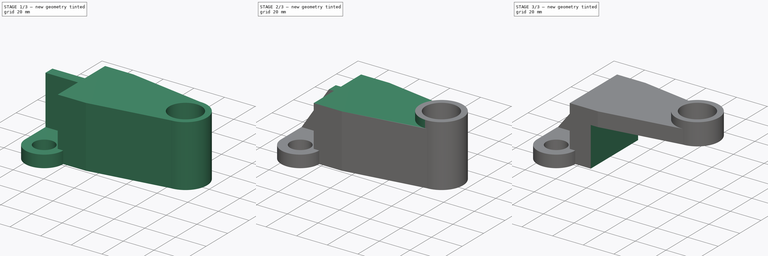
[diagram: build sequence overview — one tinted view per stage of 3, left to right]
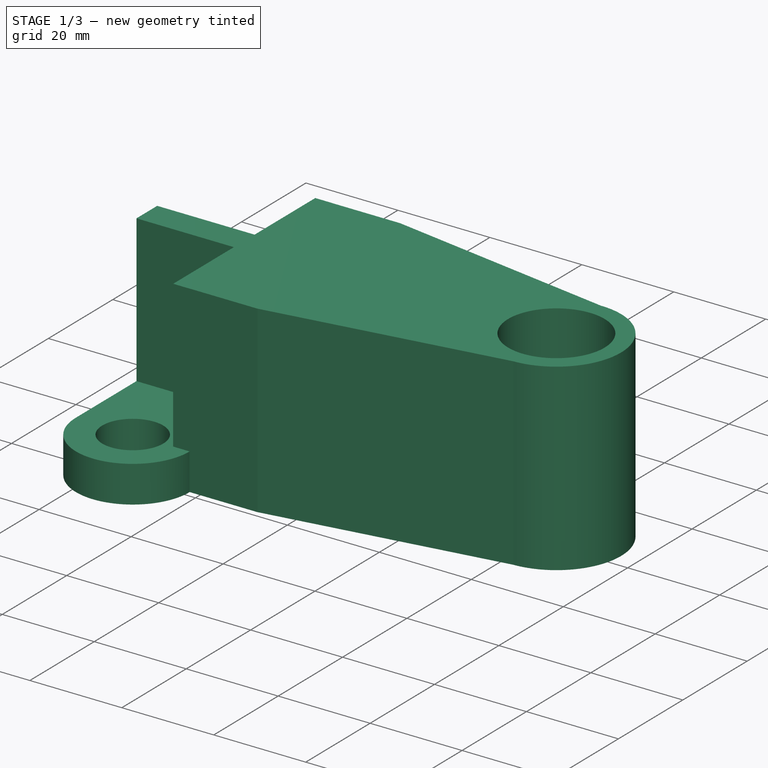
[diagram: stage 1 of 3 — iso view after this stage's code; geometry added in this stage tinted green]
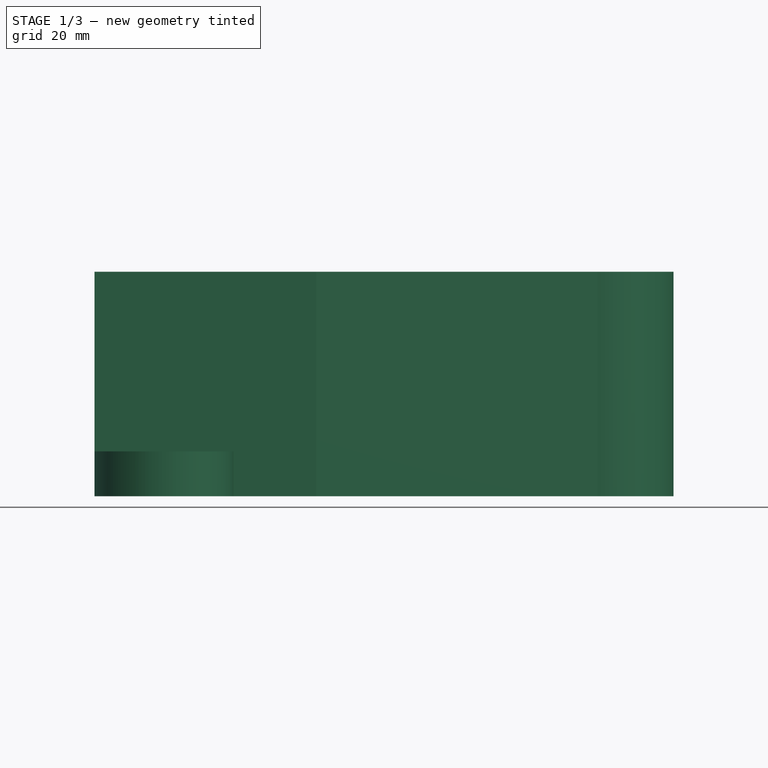
[diagram: stage 1 of 3 — front view after this stage's code; geometry added in this stage tinted green]
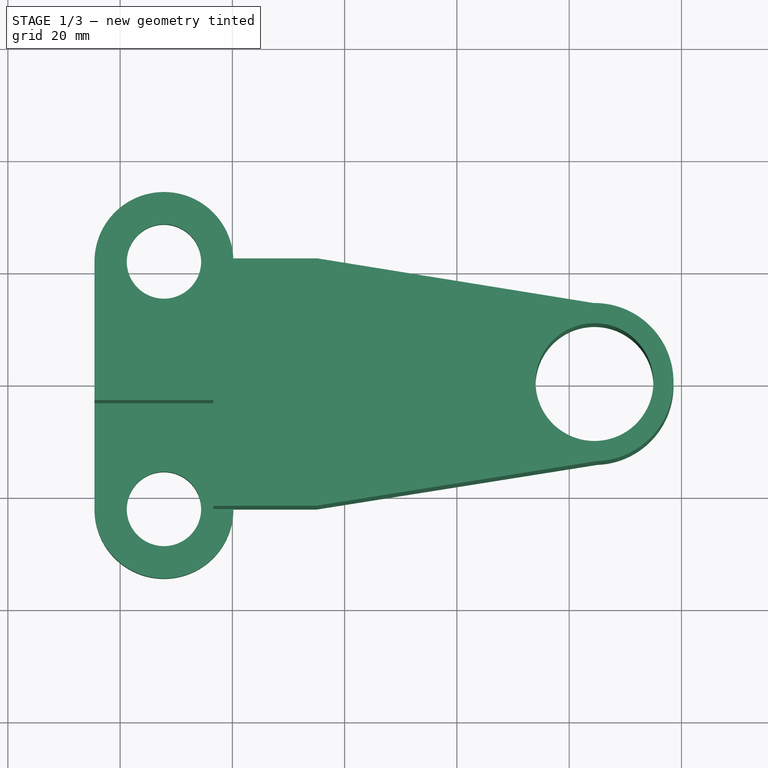
[diagram: stage 1 of 3 — top view after this stage's code; geometry added in this stage tinted green]
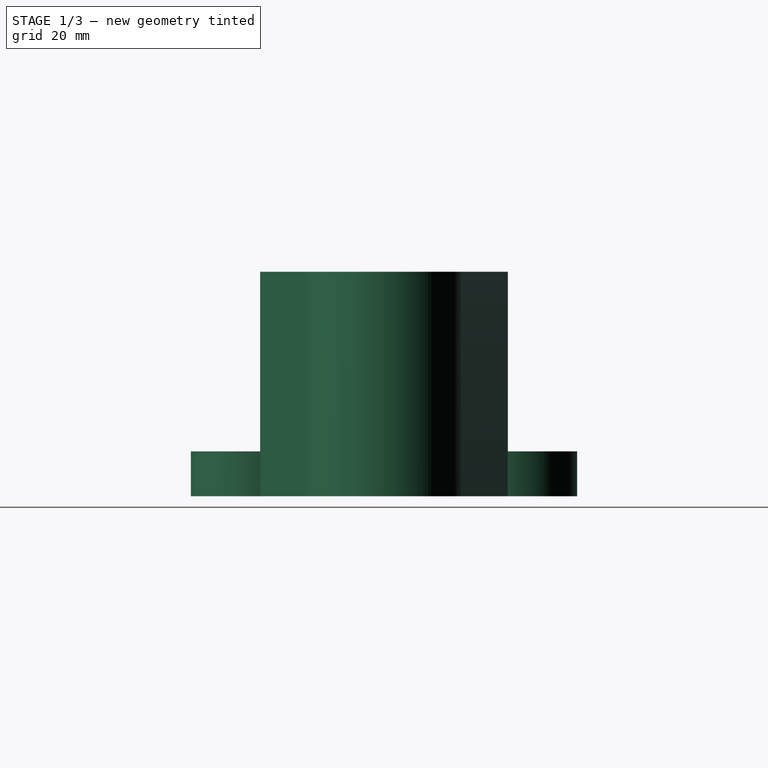
[diagram: stage 1 of 3 — right view after this stage's code; geometry added in this stage tinted green]
FCSTD DOCUMENT  (FreeCAD 0.21R33771 (Git))
Label: ex87
License: All rights reserved
LicenseURL: http://en.wikipedia.org/wiki/All_rights_reserved
objects: Sketcher::SketchObject×6, PartDesign::Pocket×5, PartDesign::Pad×1, PartDesign::Body×1
note: 19 computed .brp shape members not serialized (recipe doc carries the construction recipe); baked Part::Feature solids carry a one-line shape summary decoded from their .brp

FEATURE [Sketcher::SketchObject] Sketch
  AttachmentOffset = pos=(0,0,40) rot=(0,0,1;0rad)
  FullyConstrained = false
  MapMode = 5
  Placement = pos=(0,0,40) rot=(0,0,1;0rad)
  Support = -> [XY_Plane]
  sketch-geometry (6):
    g0: LineSegment StartX=-51.7589 StartY=-23.0198 StartZ=0 EndX=-51.5726 EndY=22.5338 EndZ=0
    g1: ArcOfCircle CenterX=44.5092 CenterY=0 CenterZ=0 NormalX=0 NormalY=0 NormalZ=1 AngleXU=0 Radius=14.0835 StartAngle=1.58222 EndAngle=4.74746
    g2: LineSegment StartX=-51.5726 StartY=22.5338 StartZ=0 EndX=-4.83373 EndY=22.5338 EndZ=0
    g3: LineSegment StartX=-51.7589 StartY=-23.0198 StartZ=0 EndX=-5.18641 EndY=-23.0198 EndZ=0
    g4: LineSegment StartX=-4.83373 StartY=22.5338 StartZ=0 EndX=44.3482 EndY=14.0826 EndZ=0
    g5: LineSegment StartX=45.003 StartY=-14.0748 StartZ=0 EndX=-5.18641 EndY=-23.0198 EndZ=0
  constraints (9):
    c: Coincident(g3,g0) = -1.5708
    c: Coincident(g0,g2) = -1.5708
    c: PointOnObject(g1,g-1)
    c: Horizontal(g2)
    c: Horizontal(g3)
    c: Coincident(g4,g2)
    c: Coincident(g5,g3)
    c: Coincident(g1,g5)
    c: Coincident(g1,g4)
FEATURE [Sketcher::SketchObject] Sketch001
  FullyConstrained = false
  MapMode = 5
  sketch-geometry (11):
    g0: ArcOfCircle CenterX=-32.1963 CenterY=22.0466 CenterZ=0 NormalX=0 NormalY=0 NormalZ=1 AngleXU=0 Radius=12.3753 StartAngle=0 EndAngle=3.14159
    g1: ArcOfCircle CenterX=-32.1963 CenterY=-22.0466 CenterZ=0 NormalX=0 NormalY=0 NormalZ=1 AngleXU=0 Radius=12.3753 StartAngle=3.14159 EndAngle=6.28319
    g2: LineSegment StartX=-44.5717 StartY=22.0466 StartZ=0 EndX=-44.5717 EndY=-22.0466 EndZ=0
    g3: Circle CenterX=-32.1963 CenterY=22.0466 CenterZ=0 NormalX=0 NormalY=0 NormalZ=1 AngleXU=0 Radius=6.63079
    g4: Circle CenterX=-32.1963 CenterY=-22.0466 CenterZ=0 NormalX=0 NormalY=0 NormalZ=1 AngleXU=0 Radius=6.63079
    g5: ArcOfCircle CenterX=44.5092 CenterY=0 CenterZ=0 NormalX=0 NormalY=0 NormalZ=1 AngleXU=0 Radius=14.0835 StartAngle=4.74746 EndAngle=7.86541
    g6: Circle CenterX=44.5092 CenterY=0 CenterZ=0 NormalX=0 NormalY=0 NormalZ=1 AngleXU=0 Radius=10.4987
    g7: LineSegment StartX=-19.821 StartY=22.0466 StartZ=0 EndX=-4.90849 EndY=22.0466 EndZ=0
    g8: LineSegment StartX=-19.821 StartY=-22.0466 StartZ=0 EndX=-5.07488 EndY=-22.0466 EndZ=0
    g9: LineSegment StartX=-4.90849 StartY=22.0466 StartZ=0 EndX=44.3482 EndY=14.0826 EndZ=0
    g10: LineSegment StartX=45.003 StartY=-14.0748 StartZ=0 EndX=-5.07488 EndY=-22.0466 EndZ=0
  constraints (17):
    c: Tangent(g0,g2) = -1.5708
    c: Tangent(g2,g1) = -1.5708
    c: Equal(g0,g1)
    c: Coincident(g3,g0)
    c: Coincident(g4,g1)
    c: Equal(g4,g3)
    c: PointOnObject(g5,g-1)
    c: Coincident(g6,g5)
    c: Coincident(g7,g0)
    c: Horizontal(g7)
    c: Coincident(g8,g1)
    c: Horizontal(g8)
    c: Symmetric(g1,g0,g-1)
    c: Coincident(g9,g7)
    c: Coincident(g10,g8)
    c: Coincident(g5,g9)
    c: Coincident(g5,g10)
FEATURE [PartDesign::Pad] Pad
  Direction = (0,0,1)
  Length = 40
  Length2 = 10
  Profile = -> Sketch001
  ReferenceAxis = -> Sketch001 [N_Axis]
  Refine = true
  Type = 0
FEATURE [Sketcher::SketchObject] Sketch002
  AttachmentOffset = pos=(0,0,40) rot=(0,0,1;0rad)
  FullyConstrained = false
  MapMode = 5
  Placement = pos=(0,0,40) rot=(0,0,1;0rad)
  Support = -> [XY_Plane]
  sketch-geometry (11):
    g0: ArcOfCircle CenterX=-32.2276 CenterY=21.9369 CenterZ=0 NormalX=0 NormalY=0 NormalZ=1 AngleXU=0 Radius=12.8737 StartAngle=0.0101274 EndAngle=3.14159
    g1: ArcOfCircle CenterX=-32.2276 CenterY=-21.9369 CenterZ=0 NormalX=0 NormalY=0 NormalZ=1 AngleXU=0 Radius=12.8737 StartAngle=3.14159 EndAngle=6.273
    g2: LineSegment StartX=-45.1013 StartY=21.9369 StartZ=0 EndX=-45.1013 EndY=-21.9369 EndZ=0
    g3: LineSegment StartX=-19.3546 StartY=22.0673 StartZ=0 EndX=-23.3901 EndY=22.0673 EndZ=0
    g4: LineSegment StartX=-23.3901 StartY=22.0673 StartZ=0 EndX=-23.3901 EndY=3.21818 EndZ=0
    g5: LineSegment StartX=-23.3901 StartY=-22.068 StartZ=0 EndX=-19.3547 EndY=-22.068 EndZ=0
    g6: LineSegment StartX=-44.7288 StartY=-3.21818 StartZ=0 EndX=-23.3901 EndY=-3.21818 EndZ=0
    g7: LineSegment StartX=-23.3901 StartY=3.21818 StartZ=0 EndX=-44.7288 EndY=3.21818 EndZ=0
    g8: GeomPoint X=-34.5536 Y=0 Z=0
    g9: LineSegment StartX=-23.3901 StartY=-3.21818 StartZ=0 EndX=-23.3901 EndY=-22.068 EndZ=0
    g10: LineSegment StartX=-44.7288 StartY=3.21818 StartZ=0 EndX=-44.7288 EndY=-3.21818 EndZ=0
  constraints (19):
    c: Tangent(g0,g2) = -1.5708
    c: Tangent(g2,g1) = -1.5708
    c: Equal(g0,g1)
    c: Symmetric(g1,g0,g-1)
    c: Coincident(g3,g0)
    c: Horizontal(g3)
    c: Vertical(g4)
    c: Coincident(g5,g9)
    c: Coincident(g5,g1)
    c: Horizontal(g5)
    c: Coincident(g3,g4)
    c: Horizontal(g6)
    c: Horizontal(g7)
    c: PointOnObject(g8,g-1)
    c: Coincident(g4,g7)
    c: Coincident(g9,g6)
    c: Vertical(g10)
    c: Coincident(g7,g10)
    c: Coincident(g6,g10)
FEATURE [PartDesign::Pocket] Pocket
  BaseFeature = -> Pad
  Direction = (0,0,-1)
  Length = 32
  Length2 = 5
  Profile = -> Sketch002
  ReferenceAxis = -> Sketch002 [N_Axis]
  Refine = true
  Type = 0
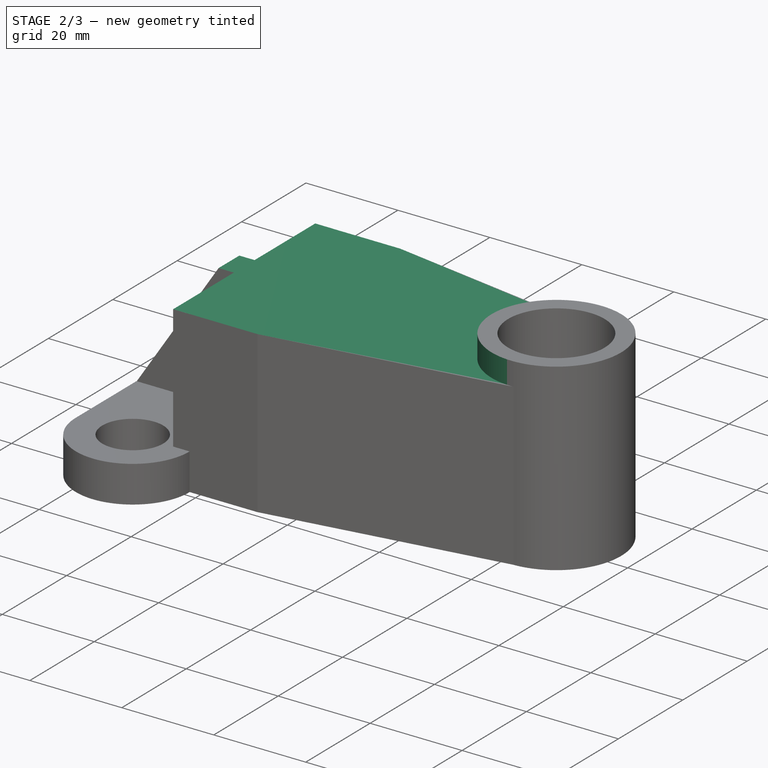
[diagram: stage 2 of 3 — iso view after this stage's code; geometry added in this stage tinted green]
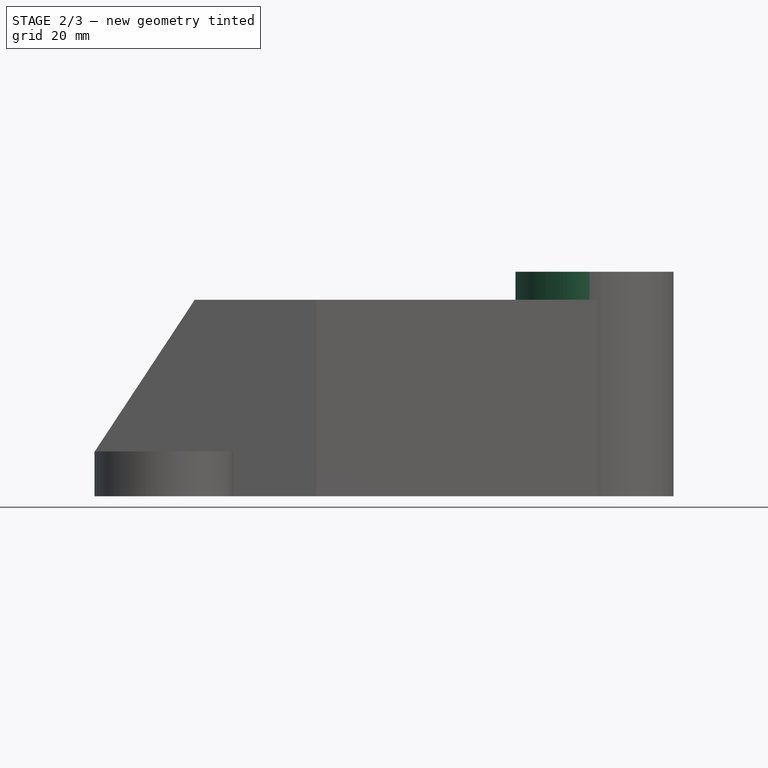
[diagram: stage 2 of 3 — front view after this stage's code; geometry added in this stage tinted green]
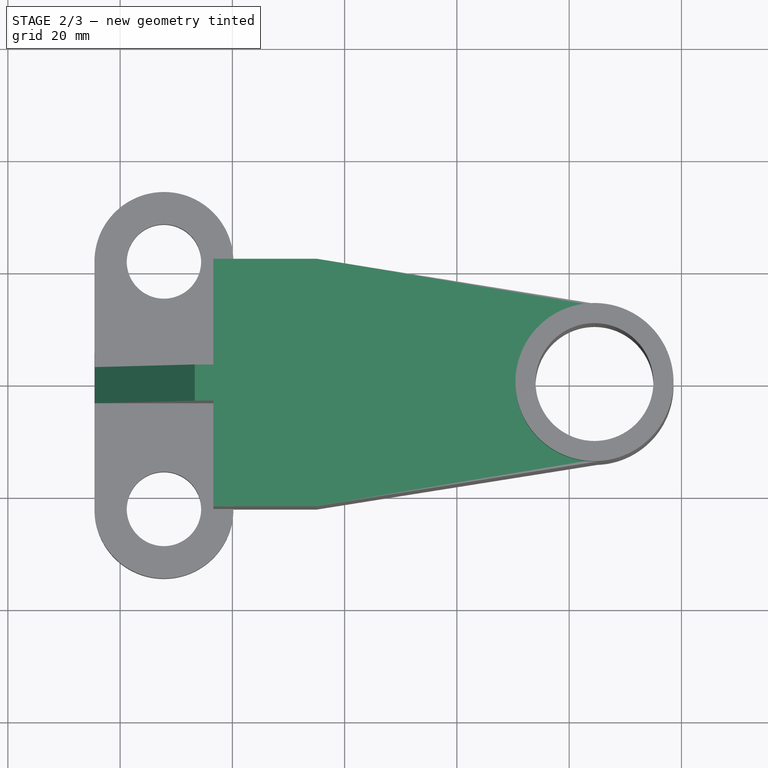
[diagram: stage 2 of 3 — top view after this stage's code; geometry added in this stage tinted green]
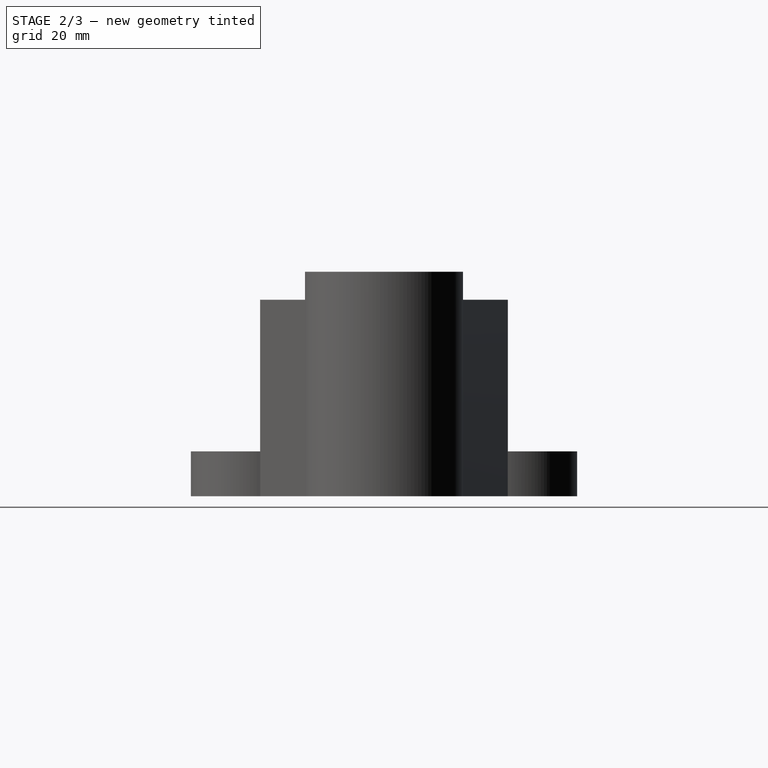
[diagram: stage 2 of 3 — right view after this stage's code; geometry added in this stage tinted green]
FEATURE [Sketcher::SketchObject] Sketch003
  FullyConstrained = false
  MapMode = 5
  Placement = pos=(0,-3.21818,0) rot=(1,0,0;1.5708rad)
  Support = -> [Pocket]
  sketch-geometry (3):
    g0: LineSegment StartX=-22.4463 StartY=41.4671 StartZ=0 EndX=-45.7569 EndY=6.11079 EndZ=0
    g1: LineSegment StartX=-22.4463 StartY=41.4671 StartZ=0 EndX=-48.8799 EndY=41.4671 EndZ=0
    g2: LineSegment StartX=-48.8799 StartY=41.4671 StartZ=0 EndX=-45.7569 EndY=6.11079 EndZ=0
  constraints (4):
    c: Coincident(g1,g0)
    c: Horizontal(g1)
    c: Coincident(g2,g1)
    c: Coincident(g2,g0)
FEATURE [PartDesign::Pocket] Pocket001
  BaseFeature = -> Pocket
  Direction = (0,1,-2e-16)
  Length = 9
  Length2 = 5
  Profile = -> Sketch003
  ReferenceAxis = -> Sketch003 [N_Axis]
  Refine = true
  Type = 0
FEATURE [PartDesign::Pocket] Pocket002
  BaseFeature = -> Pocket001
  Direction = (0,0,-1)
  Length = 5
  Length2 = 5
  Profile = -> Sketch
  ReferenceAxis = -> Sketch [N_Axis]
  Refine = true
  Type = 0
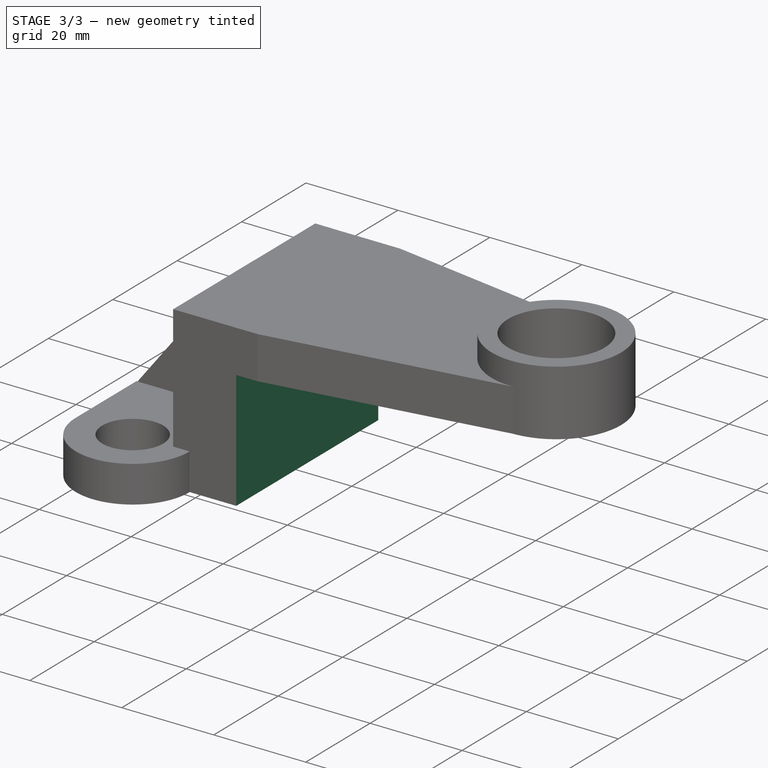
[diagram: stage 3 of 3 — iso view after this stage's code; geometry added in this stage tinted green]
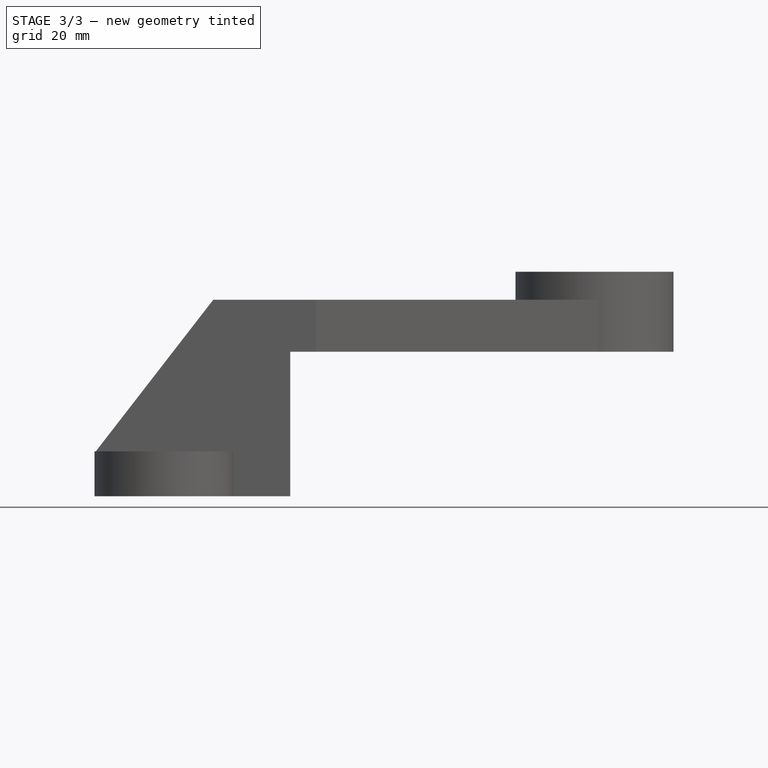
[diagram: stage 3 of 3 — front view after this stage's code; geometry added in this stage tinted green]
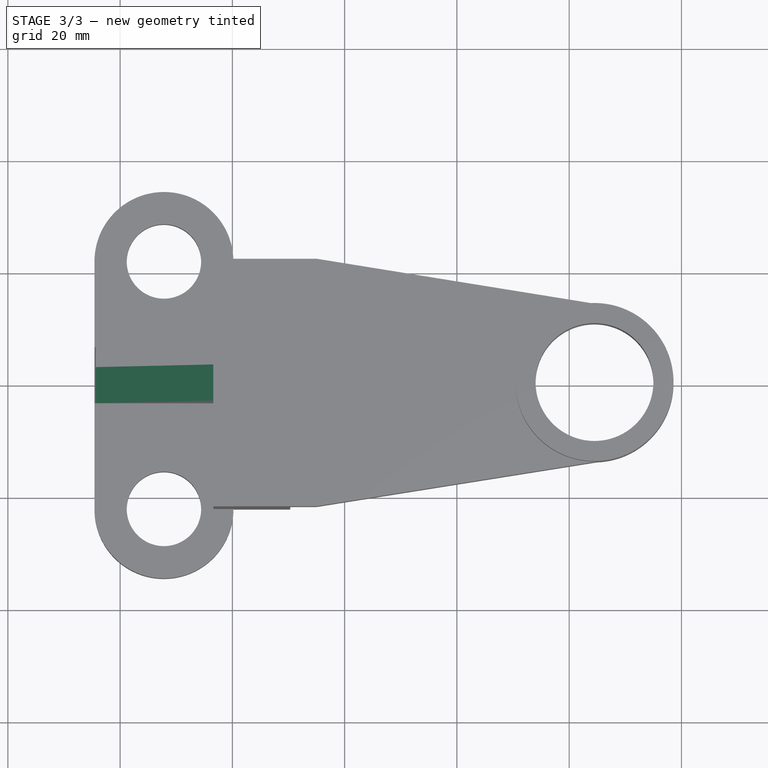
[diagram: stage 3 of 3 — top view after this stage's code; geometry added in this stage tinted green]
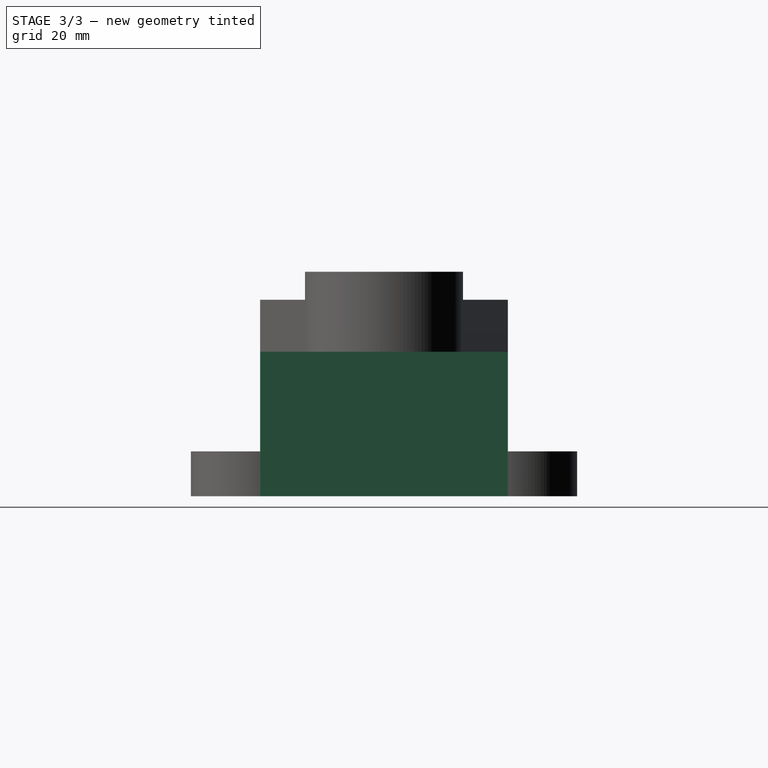
[diagram: stage 3 of 3 — right view after this stage's code; geometry added in this stage tinted green]
FEATURE [Sketcher::SketchObject] Sketch004
  FullyConstrained = false
  MapMode = 5
  Placement = pos=(0,-3.21818,0) rot=(1,0,0;1.5708rad)
  Support = -> [Pocket002]
  sketch-geometry (3):
    g0: LineSegment StartX=-20.7609 StartY=38.4248 StartZ=0 EndX=-49.3688 EndY=1.50693 EndZ=0
    g1: LineSegment StartX=-20.7609 StartY=38.4248 StartZ=0 EndX=-41.0589 EndY=38.4248 EndZ=0
    g2: LineSegment StartX=-41.0589 StartY=38.4248 StartZ=0 EndX=-49.3688 EndY=1.50693 EndZ=0
  constraints (4):
    c: Coincident(g1,g0)
    c: Horizontal(g1)
    c: Coincident(g2,g1)
    c: Coincident(g2,g0)
FEATURE [PartDesign::Pocket] Pocket003
  BaseFeature = -> Pocket002
  Direction = (0,1,-2e-16)
  Length = 10
  Length2 = 5
  Profile = -> Sketch004
  ReferenceAxis = -> Sketch004 [N_Axis]
  Refine = true
  Type = 0
FEATURE [Sketcher::SketchObject] Sketch005
  FullyConstrained = false
  MapMode = 5
  Placement = pos=(0,0,0) rot=(1,0,0;1.5708rad)
  Support = -> [XZ_Plane]
  sketch-geometry (5):
    g0: LineSegment StartX=-9.68962 StartY=25.7357 StartZ=0 EndX=-9.68962 EndY=-6.6313 EndZ=0
    g1: LineSegment StartX=-9.68962 StartY=-6.6313 StartZ=0 EndX=84.6084 EndY=-6.6313 EndZ=0
    g2: LineSegment StartX=84.6084 StartY=-6.6313 StartZ=0 EndX=84.6084 EndY=25.7357 EndZ=0
    g3: LineSegment StartX=84.6084 StartY=25.7357 StartZ=0 EndX=-9.68962 EndY=25.7357 EndZ=0
    g4: GeomPoint X=37.4594 Y=9.55219 Z=0
  constraints (9):
    c: Coincident(g0,g1)
    c: Coincident(g1,g2)
    c: Coincident(g2,g3)
    c: Coincident(g3,g0)
    c: Horizontal(g1)
    c: Horizontal(g3)
    c: Vertical(g0)
    c: Vertical(g2)
    c: Symmetric(g1,g0,g4)
FEATURE [PartDesign::Pocket] Pocket004
  BaseFeature = -> Pocket003
  Direction = (0,1,-2e-16)
  Length = 5
  Length2 = 5
  Midplane = true
  Profile = -> Sketch005
  ReferenceAxis = -> Sketch005 [N_Axis]
  Refine = true
  Type = 1
FEATURE [PartDesign::Body] Body
  Group = -> [Sketch,Sketch001,Pad,Sketch002,Pocket,Sketch003,Pocket001,Pocket002,Sketch004,Pocket003,Sketch005,Pocket004]
  Origin = -> Origin
  Tip = -> Pocket004
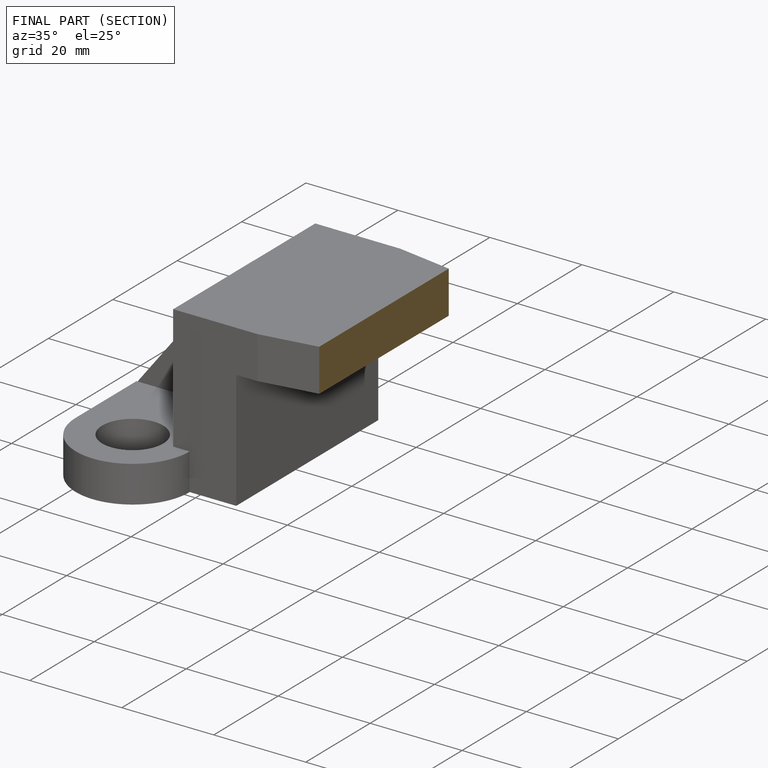
[diagram: finished part — half-section view (interior)]
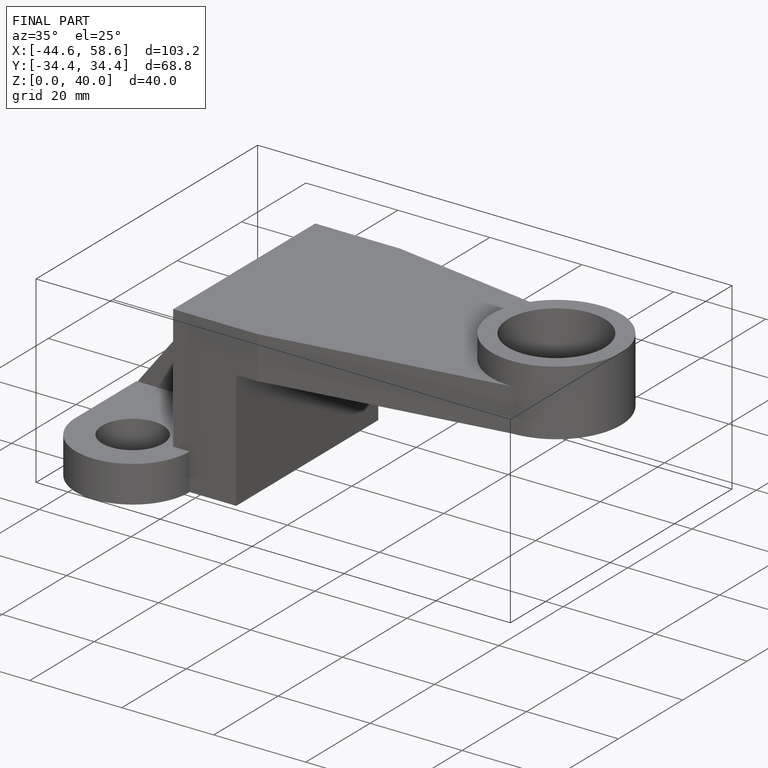
[diagram: finished part — iso view with bounding-box wireframe]
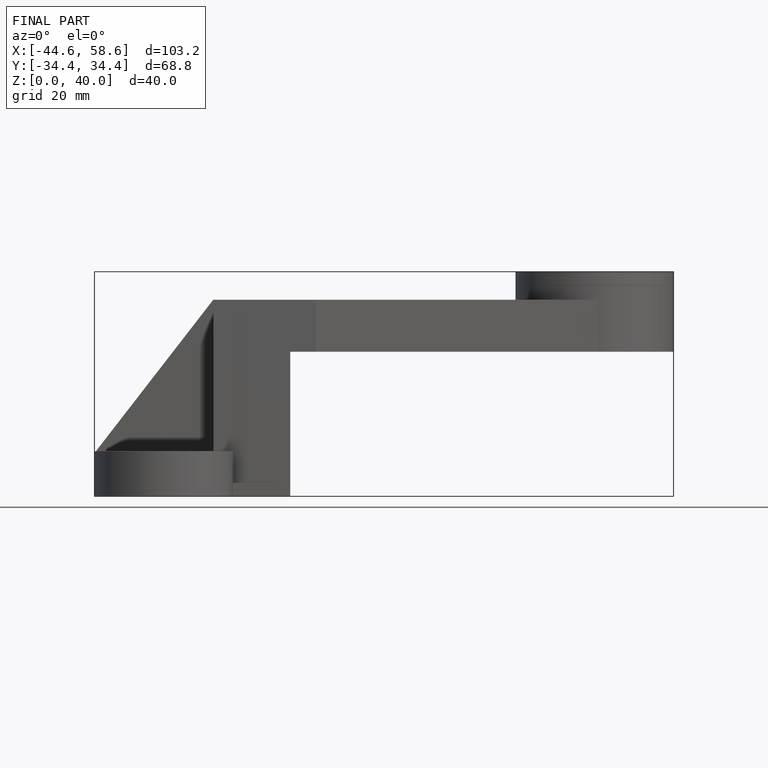
[diagram: finished part — front view with bounding-box wireframe]
